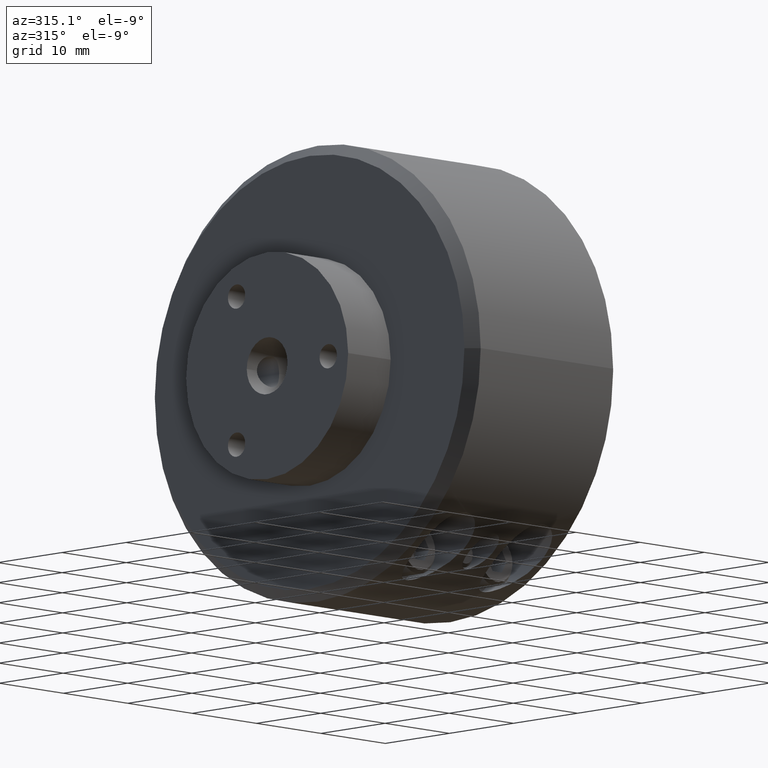
[diagram: clean part render]
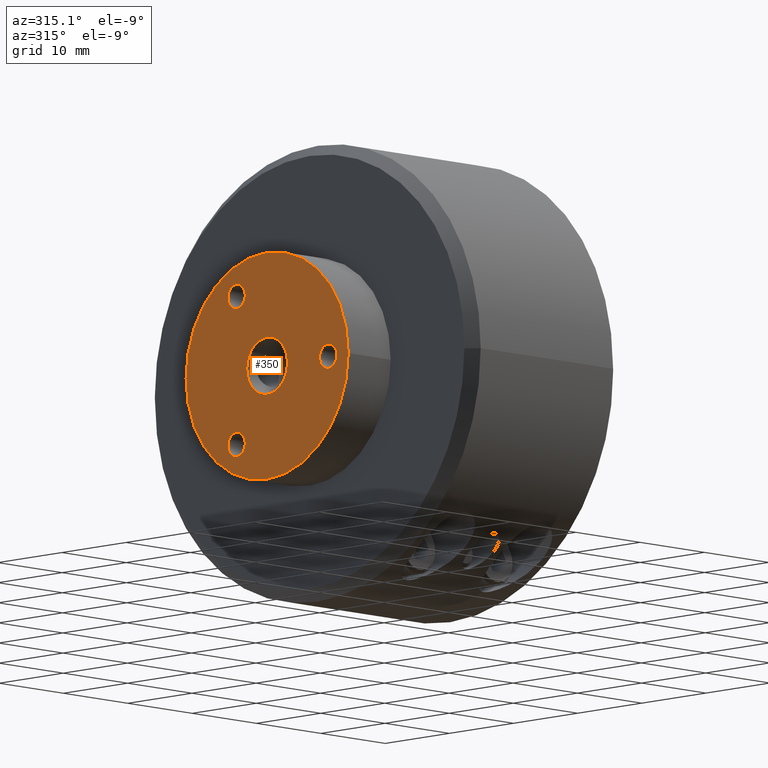
[diagram: same view with one face highlighted and labeled with its STEP entity id]
A machine part, auxiliary view. The second image highlights one B-rep face of the part: STEP entity #350.
In plain terms, the highlighted planar face has unit normal (1, 0, 0).
Its self-contained STEP definition (entity closure, byte-faithful):
#9 = CARTESIAN_POINT ( 'NONE',  ( -0.7149999999999996400, -0.1250000000000000000, 1.530808498934191800E-017 ) ) ;
#18 = CARTESIAN_POINT ( 'NONE',  ( -0.7149999999999996400, 0.1875000000000000800, -0.2715095264191647600 ) ) ;
#109 = CARTESIAN_POINT ( 'NONE',  ( -0.7149999999999996400, 0.1875000000000000800, -0.3780095264191641900 ) ) ;
#125 = AXIS2_PLACEMENT_3D ( 'NONE', #456, #528, #391 ) ;
#180 = AXIS2_PLACEMENT_3D ( 'NONE', #2534, #2747, #2694 ) ;
#181 = AXIS2_PLACEMENT_3D ( 'NONE', #2682, #2544, #2690 ) ;
#184 = AXIS2_PLACEMENT_3D ( 'NONE', #2605, #2651, #2659 ) ;
#221 = AXIS2_PLACEMENT_3D ( 'NONE', #1238, #1239, #1240 ) ;
#227 = AXIS2_PLACEMENT_3D ( 'NONE', #1241, #1242, #1243 ) ;
#229 = AXIS2_PLACEMENT_3D ( 'NONE', #1261, #1269, #1270 ) ;
#258 = AXIS2_PLACEMENT_3D ( 'NONE', #1648, #1657, #1658 ) ;
#259 = AXIS2_PLACEMENT_3D ( 'NONE', #1645, #1654, #1655 ) ;
#260 = AXIS2_PLACEMENT_3D ( 'NONE', #1653, #1660, #1661 ) ;
#262 = AXIS2_PLACEMENT_3D ( 'NONE', #1659, #1666, #1667 ) ;
#350 = ADVANCED_FACE ( 'NONE', ( #3269, #3272, #3274, #3276, #3268 ), #435, .F. ) ;
#391 = DIRECTION ( 'NONE',  ( -1.193989507720394800E-016, 1.000000000000000000, 0.0000000000000000000 ) ) ;
#396 = VERTEX_POINT ( 'NONE', #9 ) ;
#427 = VERTEX_POINT ( 'NONE', #18 ) ;
#435 = PLANE ( 'NONE',  #125 ) ;
#456 = CARTESIAN_POINT ( 'NONE',  ( -0.7149999999999998600, 0.4974999999999998300, 0.0000000000000000000 ) ) ;
#467 = VERTEX_POINT ( 'NONE', #109 ) ;
#528 = DIRECTION ( 'NONE',  ( 1.000000000000000000, 1.193989507720394800E-016, 0.0000000000000000000 ) ) ;
#552 = EDGE_CURVE ( 'NONE', #867, #900, #3378, .T. ) ;
#553 = EDGE_CURVE ( 'NONE', #396, #799, #3380, .T. ) ;
#556 = EDGE_CURVE ( 'NONE', #799, #396, #3386, .T. ) ;
#687 = EDGE_CURVE ( 'NONE', #858, #913, #2952, .T. ) ;
#688 = EDGE_CURVE ( 'NONE', #427, #467, #2953, .T. ) ;
#694 = EDGE_CURVE ( 'NONE', #822, #906, #2960, .T. ) ;
#777 = EDGE_CURVE ( 'NONE', #906, #822, #3080, .T. ) ;
#778 = EDGE_CURVE ( 'NONE', #467, #427, #3082, .T. ) ;
#779 = EDGE_CURVE ( 'NONE', #913, #858, #3084, .T. ) ;
#781 = EDGE_CURVE ( 'NONE', #900, #867, #3088, .T. ) ;
#799 = VERTEX_POINT ( 'NONE', #1668 ) ;
#822 = VERTEX_POINT ( 'NONE', #1691 ) ;
#858 = VERTEX_POINT ( 'NONE', #1727 ) ;
#867 = VERTEX_POINT ( 'NONE', #1736 ) ;
#900 = VERTEX_POINT ( 'NONE', #1765 ) ;
#906 = VERTEX_POINT ( 'NONE', #1771 ) ;
#913 = VERTEX_POINT ( 'NONE', #1778 ) ;
#1238 = CARTESIAN_POINT ( 'NONE',  ( -0.7149999999999996400, 0.1875000000000000800, 0.3247595264191644500 ) ) ;
#1239 = DIRECTION ( 'NONE',  ( 1.000000000000000000, -0.0000000000000000000, -0.0000000000000000000 ) ) ;
#1240 = DIRECTION ( 'NONE',  ( 0.0000000000000000000, 0.0000000000000000000, -1.000000000000000000 ) ) ;
#1241 = CARTESIAN_POINT ( 'NONE',  ( -0.7149999999999996400, 0.1875000000000000800, -0.3247595264191644500 ) ) ;
#1242 = DIRECTION ( 'NONE',  ( 1.000000000000000000, -0.0000000000000000000, -0.0000000000000000000 ) ) ;
#1243 = DIRECTION ( 'NONE',  ( 0.0000000000000000000, 0.0000000000000000000, -1.000000000000000000 ) ) ;
#1261 = CARTESIAN_POINT ( 'NONE',  ( -0.7149999999999997500, 2.340140365472900200E-032, 0.0000000000000000000 ) ) ;
#1269 = DIRECTION ( 'NONE',  ( -1.000000000000000000, -1.193989507720394800E-016, -0.0000000000000000000 ) ) ;
#1270 = DIRECTION ( 'NONE',  ( 0.0000000000000000000, -1.000000000000000000, 0.0000000000000000000 ) ) ;
#1645 = CARTESIAN_POINT ( 'NONE',  ( -0.7149999999999997500, 2.340140365472900200E-032, 0.0000000000000000000 ) ) ;
#1648 = CARTESIAN_POINT ( 'NONE',  ( -0.7149999999999996400, 0.1875000000000000800, -0.3247595264191644500 ) ) ;
#1653 = CARTESIAN_POINT ( 'NONE',  ( -0.7149999999999996400, 0.1875000000000000800, 0.3247595264191644500 ) ) ;
#1654 = DIRECTION ( 'NONE',  ( -1.000000000000000000, -1.193989507720394800E-016, -0.0000000000000000000 ) ) ;
#1655 = DIRECTION ( 'NONE',  ( 0.0000000000000000000, -1.000000000000000000, 0.0000000000000000000 ) ) ;
#1657 = DIRECTION ( 'NONE',  ( 1.000000000000000000, -0.0000000000000000000, -0.0000000000000000000 ) ) ;
#1658 = DIRECTION ( 'NONE',  ( 0.0000000000000000000, 0.0000000000000000000, -1.000000000000000000 ) ) ;
#1659 = CARTESIAN_POINT ( 'NONE',  ( -0.7149999999999996400, -0.3750000000000000600, -1.182924880895400800E-016 ) ) ;
#1660 = DIRECTION ( 'NONE',  ( 1.000000000000000000, -0.0000000000000000000, -0.0000000000000000000 ) ) ;
#1661 = DIRECTION ( 'NONE',  ( 0.0000000000000000000, 0.0000000000000000000, -1.000000000000000000 ) ) ;
#1666 = DIRECTION ( 'NONE',  ( 1.000000000000000000, -0.0000000000000000000, -0.0000000000000000000 ) ) ;
#1667 = DIRECTION ( 'NONE',  ( 0.0000000000000000000, 0.0000000000000000000, -1.000000000000000000 ) ) ;
#1668 = CARTESIAN_POINT ( 'NONE',  ( -0.7149999999999996400, 0.1250000000000000000, 0.0000000000000000000 ) ) ;
#1691 = CARTESIAN_POINT ( 'NONE',  ( -0.7149999999999997500, -0.4974999999999998300, 0.0000000000000000000 ) ) ;
#1727 = CARTESIAN_POINT ( 'NONE',  ( -0.7149999999999996400, 0.1875000000000000800, 0.3780095264191641900 ) ) ;
#1736 = CARTESIAN_POINT ( 'NONE',  ( -0.7149999999999996400, -0.3750000000000000600, 0.05324999999999964500 ) ) ;
#1765 = CARTESIAN_POINT ( 'NONE',  ( -0.7149999999999996400, -0.3750000000000000600, -0.05324999999999988800 ) ) ;
#1771 = CARTESIAN_POINT ( 'NONE',  ( -0.7149999999999997500, 0.4974999999999998300, 6.092617825758079200E-017 ) ) ;
#1778 = CARTESIAN_POINT ( 'NONE',  ( -0.7149999999999996400, 0.1875000000000000800, 0.2715095264191647600 ) ) ;
#2366 = EDGE_LOOP ( 'NONE', ( #3595, #3607 ) ) ;
#2534 = CARTESIAN_POINT ( 'NONE',  ( -0.7149999999999996400, -0.3750000000000000600, -1.182924880895400800E-016 ) ) ;
#2544 = DIRECTION ( 'NONE',  ( 1.000000000000000000, 1.193989507720394800E-016, 0.0000000000000000000 ) ) ;
#2605 = CARTESIAN_POINT ( 'NONE',  ( -0.7149999999999996400, 3.032960542342103800E-032, 0.0000000000000000000 ) ) ;
#2651 = DIRECTION ( 'NONE',  ( 1.000000000000000000, 1.193989507720394800E-016, 0.0000000000000000000 ) ) ;
#2659 = DIRECTION ( 'NONE',  ( 0.0000000000000000000, 1.000000000000000000, 0.0000000000000000000 ) ) ;
#2682 = CARTESIAN_POINT ( 'NONE',  ( -0.7149999999999996400, 3.032960542342103800E-032, 0.0000000000000000000 ) ) ;
#2690 = DIRECTION ( 'NONE',  ( 0.0000000000000000000, 1.000000000000000000, 0.0000000000000000000 ) ) ;
#2694 = DIRECTION ( 'NONE',  ( 0.0000000000000000000, 0.0000000000000000000, -1.000000000000000000 ) ) ;
#2747 = DIRECTION ( 'NONE',  ( 1.000000000000000000, -0.0000000000000000000, -0.0000000000000000000 ) ) ;
#2952 = CIRCLE ( 'NONE', #221, 0.05324999999999973500 ) ;
#2953 = CIRCLE ( 'NONE', #227, 0.05324999999999970000 ) ;
#2960 = CIRCLE ( 'NONE', #229, 0.4974999999999998300 ) ;
#3080 = CIRCLE ( 'NONE', #259, 0.4974999999999998300 ) ;
#3082 = CIRCLE ( 'NONE', #258, 0.05324999999999970000 ) ;
#3084 = CIRCLE ( 'NONE', #260, 0.05324999999999973500 ) ;
#3088 = CIRCLE ( 'NONE', #262, 0.05324999999999977000 ) ;
#3268 = FACE_OUTER_BOUND ( 'NONE', #3668, .T. ) ;
#3269 = FACE_BOUND ( 'NONE', #3725, .T. ) ;
#3272 = FACE_BOUND ( 'NONE', #3677, .T. ) ;
#3274 = FACE_BOUND ( 'NONE', #2366, .T. ) ;
#3276 = FACE_BOUND ( 'NONE', #3689, .T. ) ;
#3378 = CIRCLE ( 'NONE', #180, 0.05324999999999977000 ) ;
#3380 = CIRCLE ( 'NONE', #181, 0.1250000000000000000 ) ;
#3386 = CIRCLE ( 'NONE', #184, 0.1250000000000000000 ) ;
#3504 = ORIENTED_EDGE ( 'NONE', *, *, #778, .T. ) ;
#3519 = ORIENTED_EDGE ( 'NONE', *, *, #687, .T. ) ;
#3520 = ORIENTED_EDGE ( 'NONE', *, *, #779, .T. ) ;
#3570 = ORIENTED_EDGE ( 'NONE', *, *, #777, .T. ) ;
#3574 = ORIENTED_EDGE ( 'NONE', *, *, #556, .T. ) ;
#3589 = ORIENTED_EDGE ( 'NONE', *, *, #688, .T. ) ;
#3595 = ORIENTED_EDGE ( 'NONE', *, *, #781, .T. ) ;
#3606 = ORIENTED_EDGE ( 'NONE', *, *, #694, .T. ) ;
#3607 = ORIENTED_EDGE ( 'NONE', *, *, #552, .T. ) ;
#3616 = ORIENTED_EDGE ( 'NONE', *, *, #553, .T. ) ;
#3668 = EDGE_LOOP ( 'NONE', ( #3606, #3570 ) ) ;
#3677 = EDGE_LOOP ( 'NONE', ( #3504, #3589 ) ) ;
#3689 = EDGE_LOOP ( 'NONE', ( #3574, #3616 ) ) ;
#3725 = EDGE_LOOP ( 'NONE', ( #3520, #3519 ) ) ;